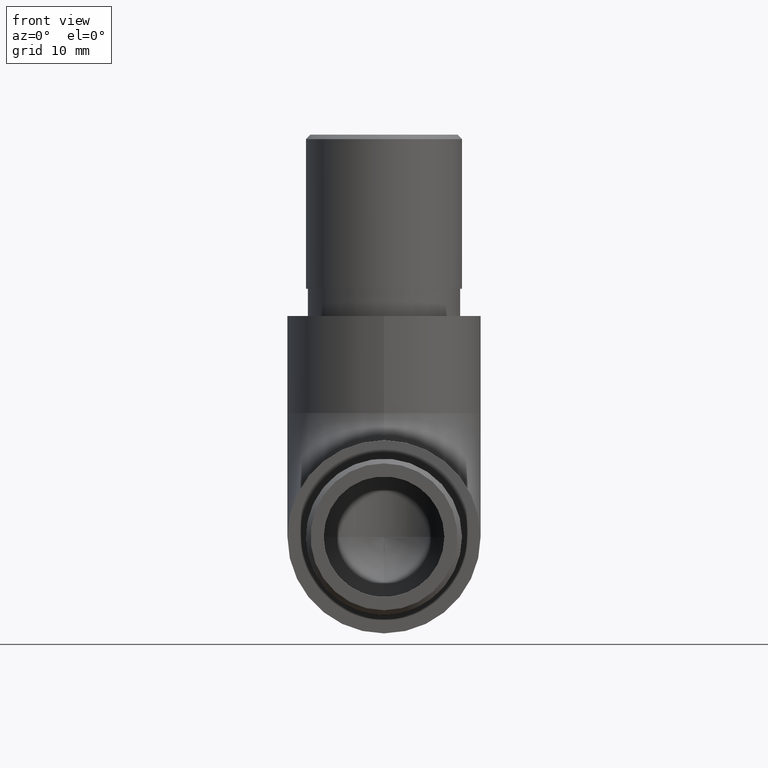
[diagram: clean part render]
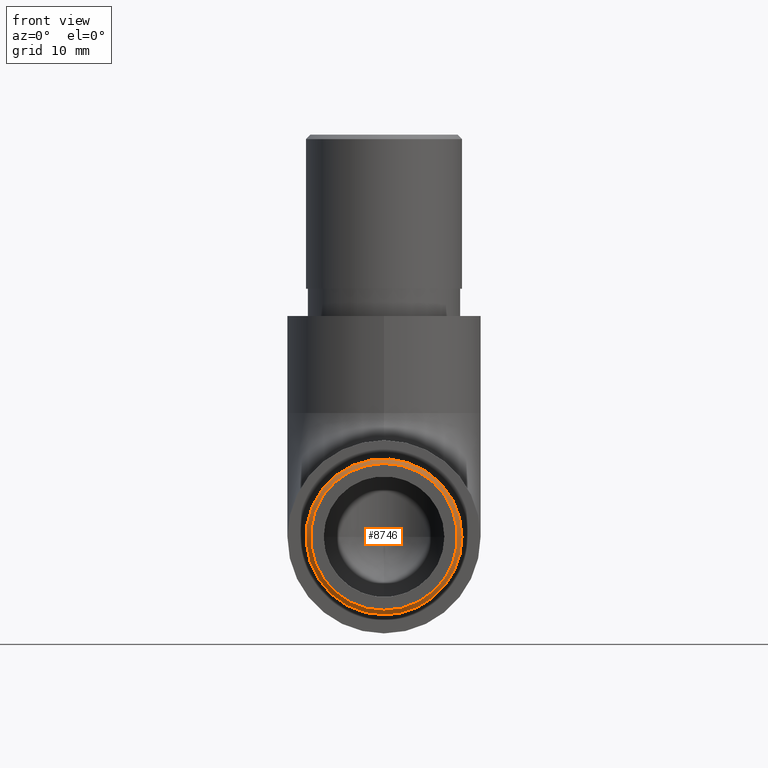
[diagram: same view with one face highlighted and labeled with its STEP entity id]
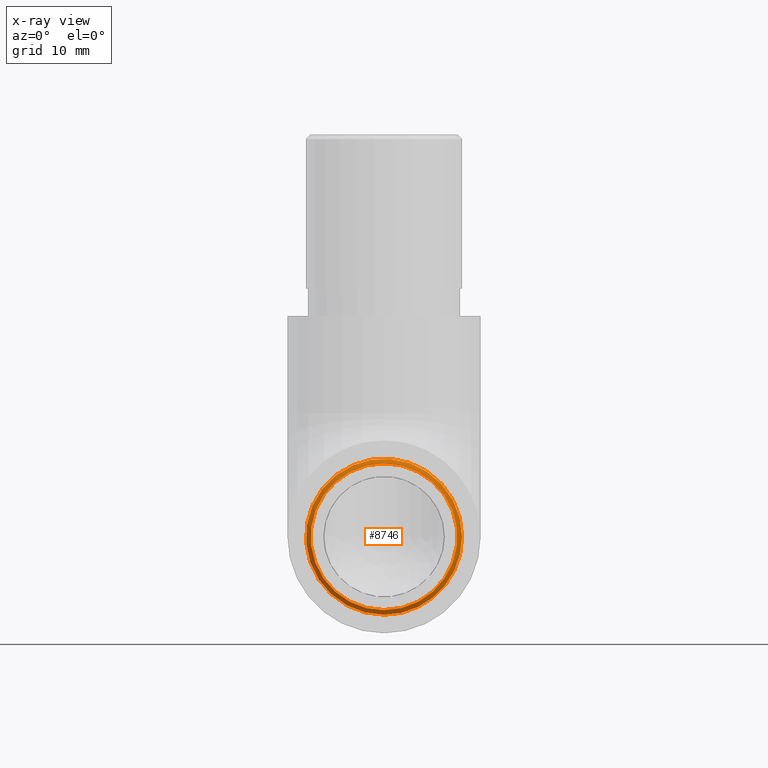
[diagram: x-ray of the same camera — body ghosted, the highlighted face saturated]
A machine part, front view. The second image highlights one B-rep face of the part: STEP entity #8746.
The next image is the same camera in x-ray: the body ghosted, the highlighted face saturated — about 0% of this face is hidden behind the body in this view.
In plain terms, the highlighted conical surface has half-angle 45 deg.
Its self-contained STEP definition (entity closure, byte-faithful):
#39 = CONICAL_SURFACE ( 'NONE', #642, 8.599999999999999600, 0.7853981633974552700 ) ;
#235 = ORIENTED_EDGE ( 'NONE', *, *, #11905, .F. ) ;
#459 = CARTESIAN_POINT ( 'NONE',  ( 5.700969169876829800E-015, -19.99999999999999300, -1.795785742331190700E-014 ) ) ;
#642 = AXIS2_PLACEMENT_3D ( 'NONE', #2200, #8315, #2064 ) ;
#1736 = AXIS2_PLACEMENT_3D ( 'NONE', #6501, #8574, #7373 ) ;
#2064 = DIRECTION ( 'NONE',  ( 0.0000000000000000000, -4.034240641806528400E-016, 1.000000000000000000 ) ) ;
#2200 = CARTESIAN_POINT ( 'NONE',  ( 5.700969169876829800E-015, -19.49999999999998900, -1.773581281838687600E-014 ) ) ;
#3680 = DIRECTION ( 'NONE',  ( 0.0000000000000000000, 4.283267841918047900E-016, -1.000000000000000000 ) ) ;
#4581 = CARTESIAN_POINT ( 'NONE',  ( 5.700969169876829800E-015, -19.99999999999998900, -8.100000000000006800 ) ) ;
#6177 = EDGE_CURVE ( 'NONE', #11945, #11945, #11062, .T. ) ;
#6501 = CARTESIAN_POINT ( 'NONE',  ( 5.700969169876829800E-015, -19.49999999999998900, -1.773581281838687600E-014 ) ) ;
#6646 = CARTESIAN_POINT ( 'NONE',  ( 5.700969169876829800E-015, -19.49999999999998600, -8.600000000000017400 ) ) ;
#7023 = ORIENTED_EDGE ( 'NONE', *, *, #6177, .F. ) ;
#7373 = DIRECTION ( 'NONE',  ( 0.0000000000000000000, 4.034240641806528400E-016, -1.000000000000000000 ) ) ;
#7392 = AXIS2_PLACEMENT_3D ( 'NONE', #459, #11779, #3680 ) ;
#7464 = FACE_OUTER_BOUND ( 'NONE', #7715, .T. ) ;
#7715 = EDGE_LOOP ( 'NONE', ( #7023 ) ) ;
#8315 = DIRECTION ( 'NONE',  ( -0.0000000000000000000, 1.000000000000000000, 4.440892098500595100E-016 ) ) ;
#8574 = DIRECTION ( 'NONE',  ( -0.0000000000000000000, 1.000000000000000000, 4.440892098500595100E-016 ) ) ;
#8727 = CIRCLE ( 'NONE', #7392, 8.099999999999989000 ) ;
#8746 = ADVANCED_FACE ( 'NONE', ( #10525, #7464 ), #39, .T. ) ;
#10089 = EDGE_LOOP ( 'NONE', ( #235 ) ) ;
#10525 = FACE_BOUND ( 'NONE', #10089, .T. ) ;
#11062 = CIRCLE ( 'NONE', #1736, 8.599999999999999600 ) ;
#11457 = VERTEX_POINT ( 'NONE', #4581 ) ;
#11779 = DIRECTION ( 'NONE',  ( 0.0000000000000000000, -1.000000000000000000, -4.440892098500625200E-016 ) ) ;
#11905 = EDGE_CURVE ( 'NONE', #11457, #11457, #8727, .T. ) ;
#11945 = VERTEX_POINT ( 'NONE', #6646 ) ;